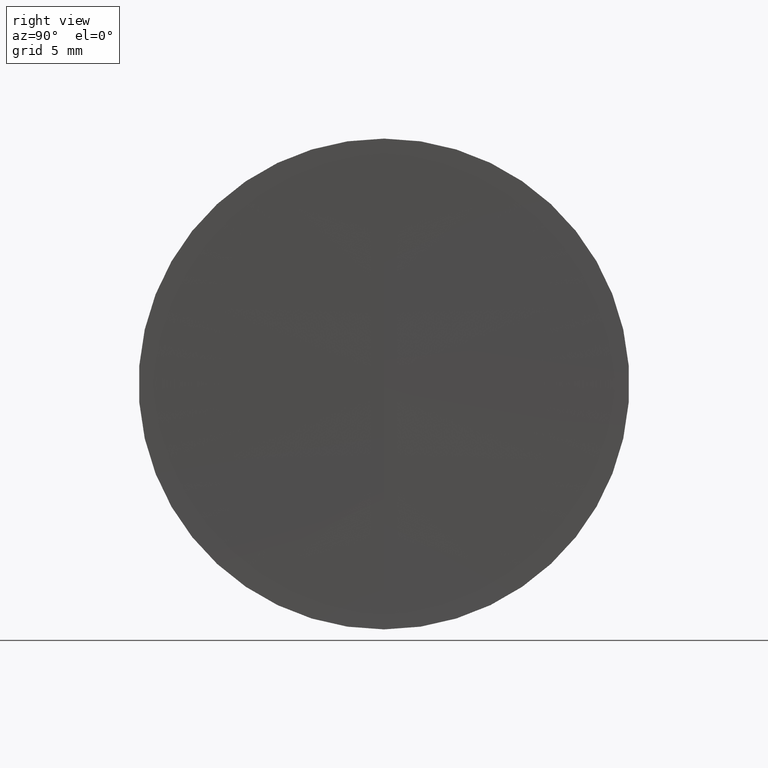
[diagram: clean part render]
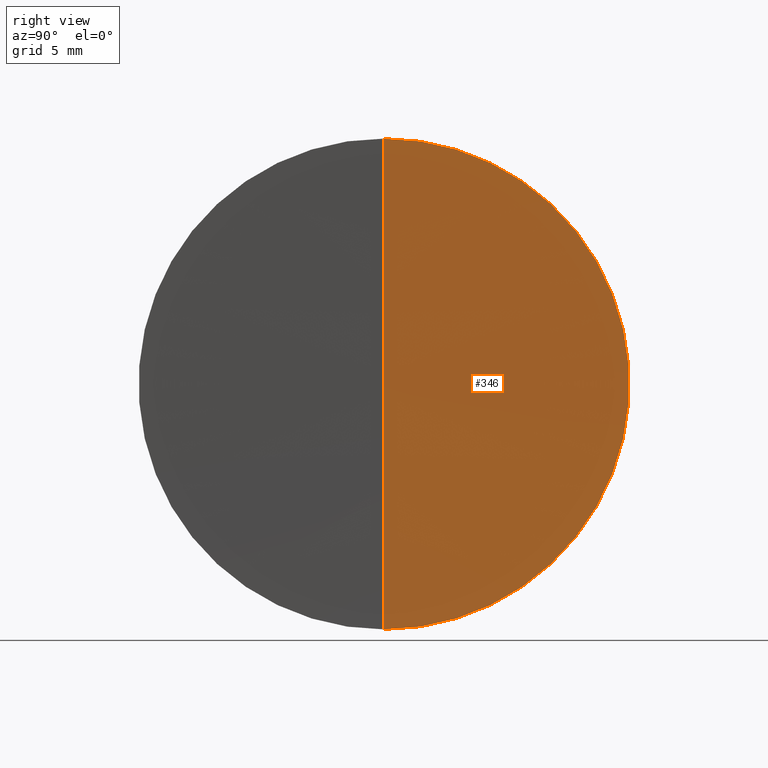
[diagram: same view with one face highlighted and labeled with its STEP entity id]
A machine part, right view. The second image highlights one B-rep face of the part: STEP entity #346.
In plain terms, the highlighted spherical surface has radius 930.5 mm.
Its self-contained STEP definition (entity closure, byte-faithful):
#2 = CIRCLE ( 'NONE', #263, 930.4999999999998900 ) ;
#24 = DIRECTION ( 'NONE',  ( 0.0000000000000000000, 1.224646799147353200E-016, -1.000000000000000000 ) ) ;
#44 = EDGE_CURVE ( 'NONE', #347, #318, #193, .T. ) ;
#69 = DIRECTION ( 'NONE',  ( -0.0000000000000000000, -1.000000000000000000, -0.0000000000000000000 ) ) ;
#76 = VERTEX_POINT ( 'NONE', #89 ) ;
#87 = CARTESIAN_POINT ( 'NONE',  ( 1254.165030046136300, 0.0000000000000000000, 0.0000000000000000000 ) ) ;
#88 = CARTESIAN_POINT ( 'NONE',  ( 1254.165030046136300, 0.0000000000000000000, 0.0000000000000000000 ) ) ;
#89 = CARTESIAN_POINT ( 'NONE',  ( 323.7517025405593900, 1.555301434917136700E-015, -12.69999999999997100 ) ) ;
#105 = CARTESIAN_POINT ( 'NONE',  ( 1254.165030046136300, 0.0000000000000000000, 0.0000000000000000000 ) ) ;
#110 = EDGE_LOOP ( 'NONE', ( #167, #282, #196 ) ) ;
#114 = DIRECTION ( 'NONE',  ( 0.0000000000000000000, 0.0000000000000000000, -1.000000000000000000 ) ) ;
#142 = DIRECTION ( 'NONE',  ( -1.000000000000000000, -0.0000000000000000000, -0.0000000000000000000 ) ) ;
#151 = EDGE_CURVE ( 'NONE', #76, #318, #2, .T. ) ;
#167 = ORIENTED_EDGE ( 'NONE', *, *, #215, .F. ) ;
#193 = CIRCLE ( 'NONE', #258, 930.4999999999998900 ) ;
#196 = ORIENTED_EDGE ( 'NONE', *, *, #151, .F. ) ;
#215 = EDGE_CURVE ( 'NONE', #347, #76, #281, .T. ) ;
#224 = CARTESIAN_POINT ( 'NONE',  ( 323.6650300461363400, 0.0000000000000000000, -5.697669233033059700E-014 ) ) ;
#226 = AXIS2_PLACEMENT_3D ( 'NONE', #304, #142, #334 ) ;
#258 = AXIS2_PLACEMENT_3D ( 'NONE', #105, #293, #24 ) ;
#263 = AXIS2_PLACEMENT_3D ( 'NONE', #88, #335, #274 ) ;
#274 = DIRECTION ( 'NONE',  ( 0.0000000000000000000, 0.0000000000000000000, 1.000000000000000000 ) ) ;
#276 = CARTESIAN_POINT ( 'NONE',  ( 323.7517025405593900, 0.0000000000000000000, 12.69999999999997100 ) ) ;
#281 = CIRCLE ( 'NONE', #226, 12.69999999999997100 ) ;
#282 = ORIENTED_EDGE ( 'NONE', *, *, #44, .T. ) ;
#293 = DIRECTION ( 'NONE',  ( 0.0000000000000000000, -1.000000000000000000, -1.224646799147353200E-016 ) ) ;
#295 = SPHERICAL_SURFACE ( 'NONE', #311, 930.4999999999998900 ) ;
#304 = CARTESIAN_POINT ( 'NONE',  ( 323.7517025405593900, 0.0000000000000000000, 0.0000000000000000000 ) ) ;
#311 = AXIS2_PLACEMENT_3D ( 'NONE', #87, #69, #114 ) ;
#318 = VERTEX_POINT ( 'NONE', #224 ) ;
#326 = FACE_OUTER_BOUND ( 'NONE', #110, .T. ) ;
#334 = DIRECTION ( 'NONE',  ( 0.0000000000000000000, 0.0000000000000000000, 1.000000000000000000 ) ) ;
#335 = DIRECTION ( 'NONE',  ( 0.0000000000000000000, 1.000000000000000000, -0.0000000000000000000 ) ) ;
#346 = ADVANCED_FACE ( 'NONE', ( #326 ), #295, .F. ) ;
#347 = VERTEX_POINT ( 'NONE', #276 ) ;